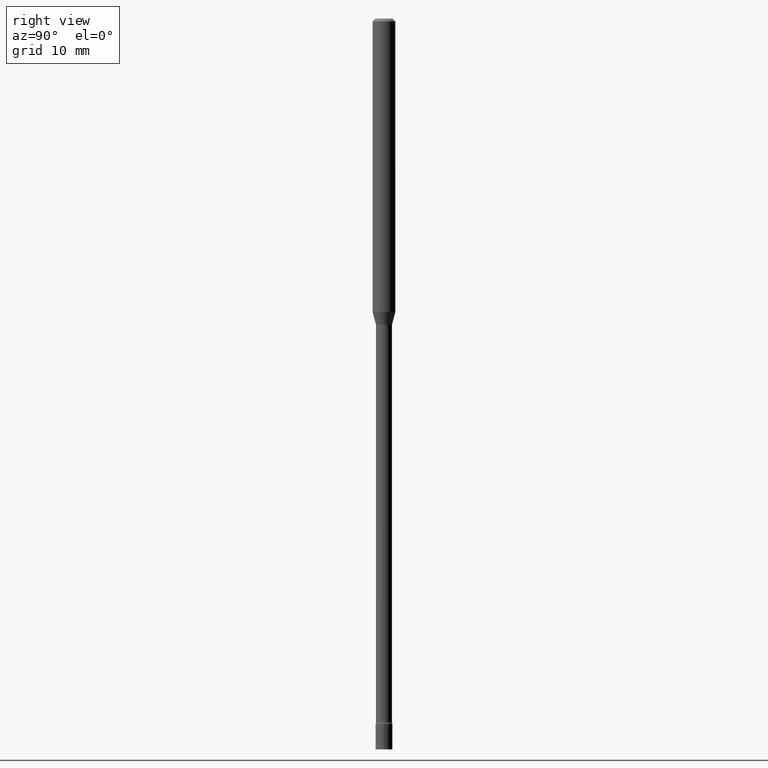
[diagram: clean part render]
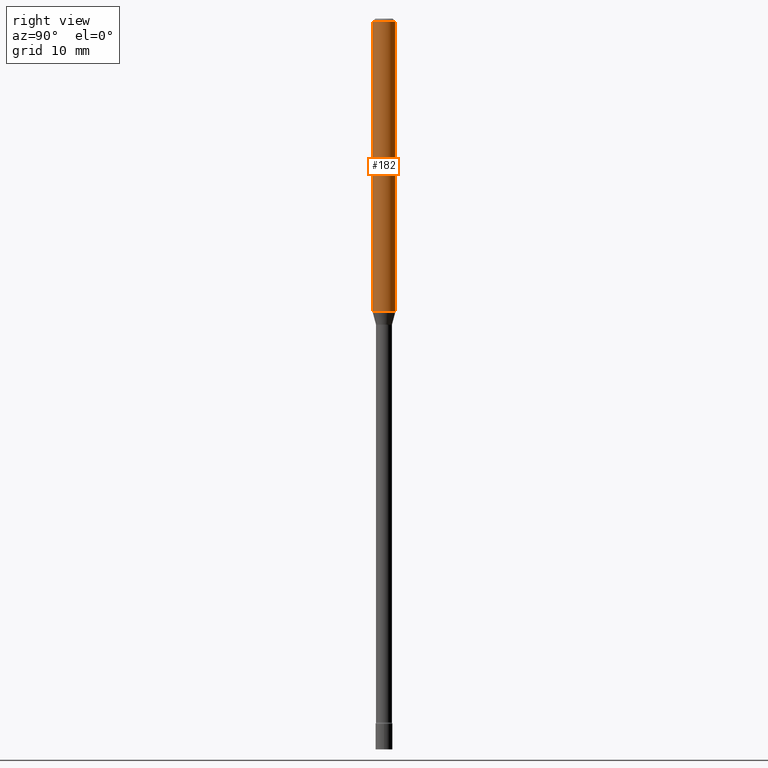
[diagram: same view with one face highlighted and labeled with its STEP entity id]
A machine part, right view. The second image highlights one B-rep face of the part: STEP entity #182.
In plain terms, the highlighted cylindrical surface (edge-blend (fillet) strip) has radius 1.5875 mm, axis along (-0, 0, 1).
Its self-contained STEP definition (entity closure, byte-faithful):
#2 = DIRECTION ( 'NONE',  ( -6.982962677686265922E-15, -1.000000000000000000, 3.491503379829358558E-15 ) ) ;
#20 = VERTEX_POINT ( 'NONE', #69 ) ;
#31 = ORIENTED_EDGE ( 'NONE', *, *, #395, .F. ) ;
#69 = CARTESIAN_POINT ( 'NONE',  ( -4.364351673553521278E-16, -0.06250000000000556499, -1.604837444817704739 ) ) ;
#77 = FACE_OUTER_BOUND ( 'NONE', #378, .T. ) ;
#81 = AXIS2_PLACEMENT_3D ( 'NONE', #410, #451, #2 ) ;
#86 = EDGE_CURVE ( 'NONE', #422, #514, #228, .T. ) ;
#99 = ORIENTED_EDGE ( 'NONE', *, *, #86, .T. ) ;
#124 = DIRECTION ( 'NONE',  ( -6.982962677686265922E-15, -1.000000000000000000, 4.370956789862821150E-15 ) ) ;
#139 = CARTESIAN_POINT ( 'NONE',  ( 4.440892098501019606E-16, 0.06249999999999443501, -1.604837444817705405 ) ) ;
#141 = LINE ( 'NONE', #492, #430 ) ;
#147 = AXIS2_PLACEMENT_3D ( 'NONE', #396, #163, #124 ) ;
#158 = EDGE_CURVE ( 'NONE', #20, #422, #351, .T. ) ;
#163 = DIRECTION ( 'NONE',  ( -2.445453415046726170E-29, 3.491503379829358558E-15, 1.000000000000000000 ) ) ;
#173 = CARTESIAN_POINT ( 'NONE',  ( -4.364351673553912750E-16, -0.06250000000000005551, -0.01499999999999981209 ) ) ;
#182 = ADVANCED_FACE ( 'NONE', ( #77 ), #254, .T. ) ;
#228 = LINE ( 'NONE', #389, #482 ) ;
#231 = AXIS2_PLACEMENT_3D ( 'NONE', #353, #319, #478 ) ;
#254 = CYLINDRICAL_SURFACE ( 'NONE', #81, 0.06250000000000000000 ) ;
#315 = ORIENTED_EDGE ( 'NONE', *, *, #158, .T. ) ;
#319 = DIRECTION ( 'NONE',  ( -2.445453415046726170E-29, 3.491503379829358558E-15, 1.000000000000000000 ) ) ;
#351 = CIRCLE ( 'NONE', #147, 0.06250000000000000000 ) ;
#353 = CARTESIAN_POINT ( 'NONE',  ( 3.668180122570096699E-31, -5.237255069744048462E-17, -0.01500000000000003067 ) ) ;
#359 = EDGE_CURVE ( 'NONE', #504, #514, #391, .T. ) ;
#378 = EDGE_LOOP ( 'NONE', ( #315, #99, #427, #31 ) ) ;
#389 = CARTESIAN_POINT ( 'NONE',  ( 4.440892098500625669E-16, 0.06250000000000000000, -2.182189612393349099E-16 ) ) ;
#391 = CIRCLE ( 'NONE', #231, 0.06250000000000000000 ) ;
#395 = EDGE_CURVE ( 'NONE', #20, #504, #141, .T. ) ;
#396 = CARTESIAN_POINT ( 'NONE',  ( 3.924555210024319080E-29, -5.603295362657728599E-15, -1.604837444817704961 ) ) ;
#410 = CARTESIAN_POINT ( 'NONE',  ( 0.000000000000000000, 0.000000000000000000, 0.000000000000000000 ) ) ;
#411 = DIRECTION ( 'NONE',  ( -2.445453415046725890E-29, 3.491503379829358163E-15, 1.000000000000000000 ) ) ;
#422 = VERTEX_POINT ( 'NONE', #139 ) ;
#427 = ORIENTED_EDGE ( 'NONE', *, *, #359, .F. ) ;
#430 = VECTOR ( 'NONE', #411, 39.37007874015748143 ) ;
#451 = DIRECTION ( 'NONE',  ( -2.445453415046726170E-29, 3.491503379829358558E-15, 1.000000000000000000 ) ) ;
#478 = DIRECTION ( 'NONE',  ( -6.982962677686265922E-15, -1.000000000000000000, 3.483106191921935554E-15 ) ) ;
#482 = VECTOR ( 'NONE', #516, 39.37007874015748143 ) ;
#486 = CARTESIAN_POINT ( 'NONE',  ( 4.440892098501020592E-16, 0.06249999999999995143, -0.01500000000000024751 ) ) ;
#492 = CARTESIAN_POINT ( 'NONE',  ( -4.364351673553916201E-16, -0.06250000000000000000, 2.182189612393349099E-16 ) ) ;
#504 = VERTEX_POINT ( 'NONE', #173 ) ;
#514 = VERTEX_POINT ( 'NONE', #486 ) ;
#516 = DIRECTION ( 'NONE',  ( -2.445453415046725890E-29, 3.491503379829358163E-15, 1.000000000000000000 ) ) ;